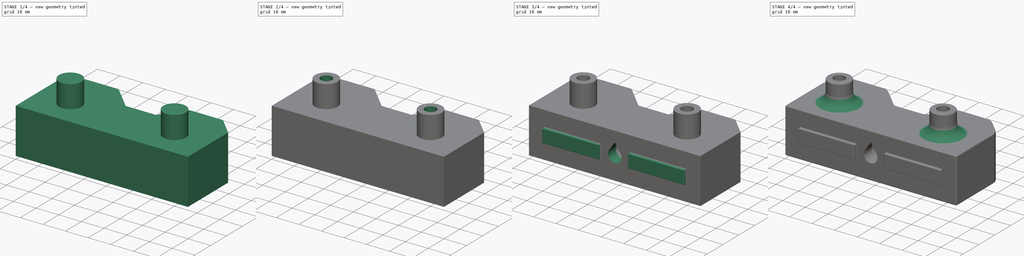
[diagram: build sequence overview — one tinted view per stage of 4, left to right]
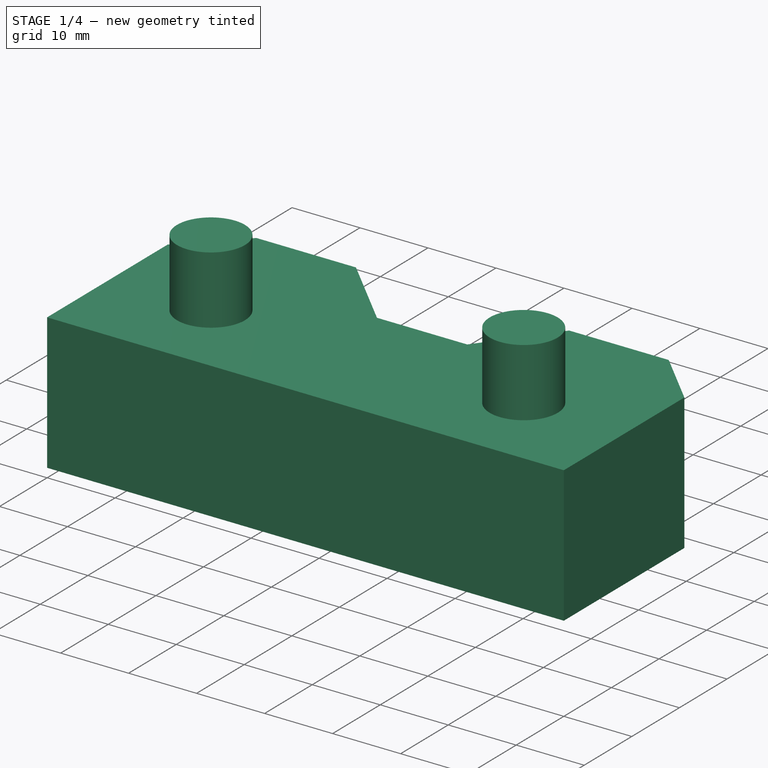
[diagram: stage 1 of 4 — iso view after this stage's code; geometry added in this stage tinted green]
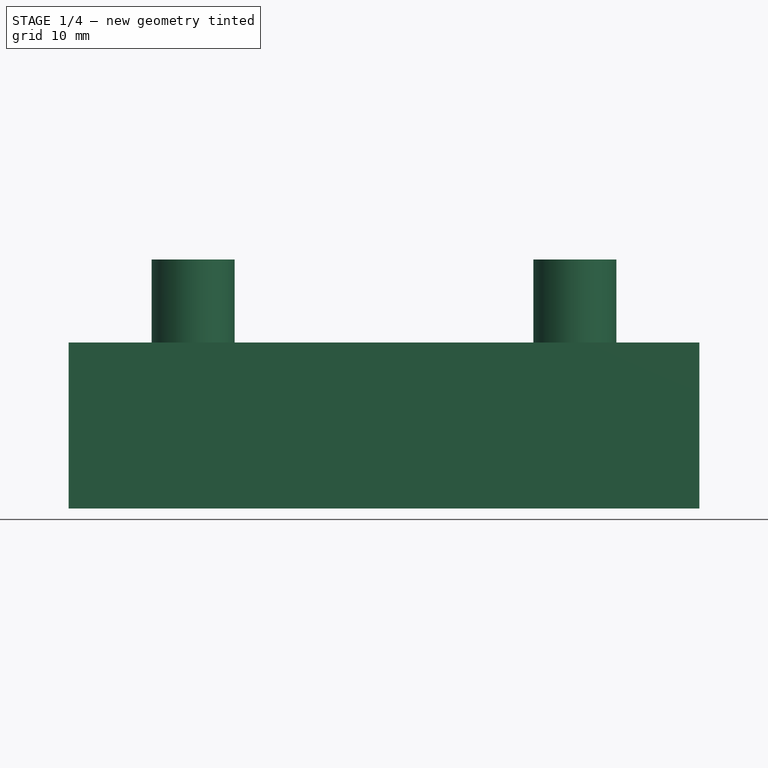
[diagram: stage 1 of 4 — front view after this stage's code; geometry added in this stage tinted green]
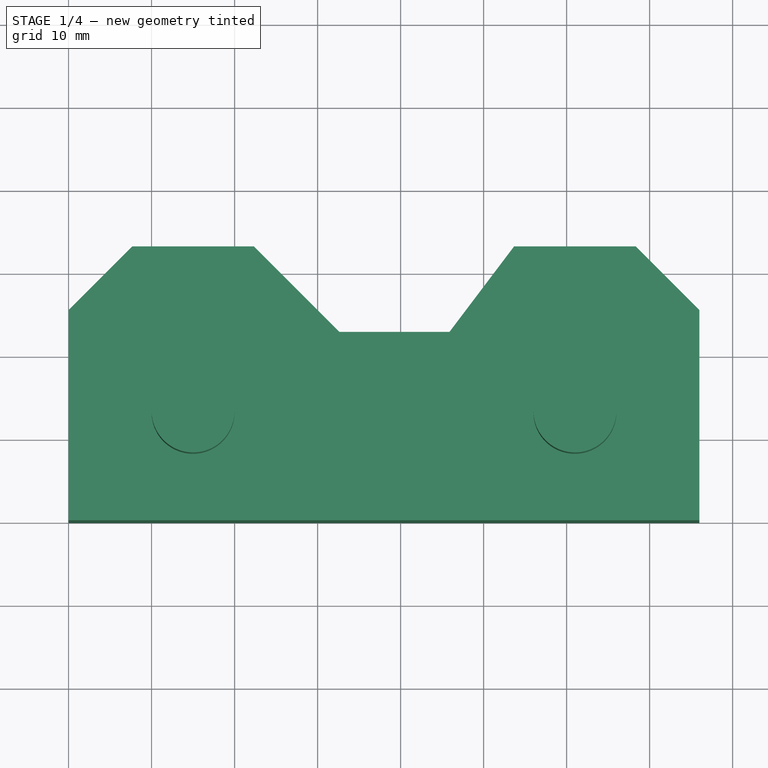
[diagram: stage 1 of 4 — top view after this stage's code; geometry added in this stage tinted green]
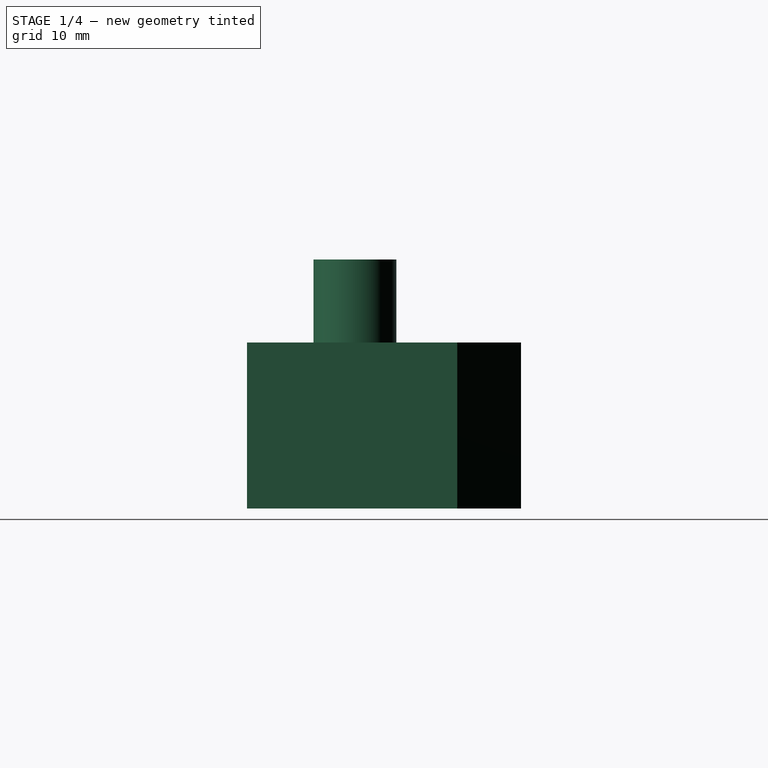
[diagram: stage 1 of 4 — right view after this stage's code; geometry added in this stage tinted green]
FCSTD DOCUMENT  (FreeCAD 1.0R38641 +678 (Git))
Label: voronpc-motherboard-3-miniatx
License: All rights reserved
LicenseURL: https://en.wikipedia.org/wiki/All_rights_reserved
objects: Sketcher::SketchObject×8, PartDesign::Pocket×4, PartDesign::Pad×3, PartDesign::Fillet×3, PartDesign::Body×1
note: 47 computed .brp shape members not serialized (recipe doc carries the construction recipe); baked Part::Feature solids carry a one-line shape summary decoded from their .brp

FEATURE [Sketcher::SketchObject] Sketch
  ArcFitTolerance = 1e-06
  AttachmentSupport = -> [XY_Plane]
  FullyConstrained = false
  MakeInternals = false
  MapMode = 5
  sketch-geometry (16):
    g0: LineSegment StartX=0 StartY=0 StartZ=0 EndX=0 EndY=25.323 EndZ=0
    g1: LineSegment StartX=0 StartY=25.323 StartZ=0 EndX=7.67703 EndY=33 EndZ=0
    g2: LineSegment StartX=7.67703 StartY=33 StartZ=0 EndX=22.323 EndY=33 EndZ=0
    g3: LineSegment StartX=22.323 StartY=33 StartZ=0 EndX=32.6259 EndY=22.6971 EndZ=0
    g4: LineSegment StartX=32.6259 StartY=22.6971 StartZ=0 EndX=45.8918 EndY=22.6971 EndZ=0
    g5: LineSegment StartX=45.8918 StartY=22.6971 StartZ=0 EndX=53.677 EndY=33 EndZ=0
    g6: LineSegment StartX=53.677 StartY=33 StartZ=0 EndX=68.323 EndY=33 EndZ=0
    g7: LineSegment StartX=68.323 StartY=33 StartZ=0 EndX=76 EndY=25.323 EndZ=0
    g8: LineSegment StartX=76 StartY=25.323 StartZ=0 EndX=76 EndY=0 EndZ=0
    g9: LineSegment StartX=76 StartY=0 StartZ=0 EndX=0 EndY=0 EndZ=0
    g10: GeomPoint X=15 Y=13 Z=0
    g11: GeomPoint X=61 Y=13 Z=0
    g12: GeomPoint X=15 Y=33 Z=0
    g13: GeomPoint X=61 Y=33 Z=0
    g14: Circle CenterX=15 CenterY=13 CenterZ=0 NormalX=0 NormalY=0 NormalZ=1 AngleXU=0 Radius=5
    g15: Circle CenterX=61 CenterY=13 CenterZ=0 NormalX=0 NormalY=0 NormalZ=1 AngleXU=0 Radius=5
  constraints (36):
    c: Coincident(g0,g-1)
    c: PointOnObject(g0,g-2)
    c: Coincident(g1,g0)
    c: Coincident(g2,g1)
    c: Coincident(g3,g2)
    c: Horizontal(g4)
    c: Coincident(g7,g6)
    c: PointOnObject(g8,g-1)
    c: Vertical(g8)
    c: Coincident(g9,g8)
    c: Coincident(g9,g0)
    c: Horizontal(g11,g10)
    c: DistanceX(g10,g11) = 46
    c: DistanceY(g0,g10) = 13
    c: DistanceX(g0,g10) = 15
    c: DistanceX(g11,g8) = 15
    c: Coincident(g3,g4)
    c: Coincident(g4,g5)
    c: Coincident(g6,g5)
    c: Horizontal(g1,g2)
    c: Horizontal(g6,g5)
    c: Coincident(g7,g8)
    c: Angle(g1,g2) = 2.35619
    c: Symmetric(g6,g6,g13)
    c: Vertical(g13,g11)
    c: Vertical(g12,g10)
    c: Symmetric(g2,g1,g12)
    c: DistanceY(g10,g12) = 20
    c: Horizontal(g13,g12)
    c: Angle(g6,g7) = 2.35619
    c: Equal(g2,g6)
    c: Angle(g2,g3) = 2.35619
    c: Diameter(g14) = 10
    c: Coincident(g14,g10)
    c: Diameter(g15) = 10
    c: Coincident(g15,g11)
FEATURE [PartDesign::Pad] Pad
  Direction = (0,0,1)
  Length = 20
  Length2 = 10
  Profile = -> Sketch
  ReferenceAxis = -> Sketch [N_Axis]
  Refine = true
  Suppressed = false
  Type = 0
FEATURE [Sketcher::SketchObject] Sketch001
  ArcFitTolerance = 1e-06
  AttachmentSupport = -> [Pad]
  FullyConstrained = true
  MakeInternals = false
  MapMode = 5
  Placement = pos=(0,0,20) rot=(0,0,1;0rad)
FEATURE [Sketcher::SketchObject] Sketch002
  ArcFitTolerance = 1e-06
  AttachmentSupport = -> [Pad]
  ExternalGeometry = -> [Pad]
  FullyConstrained = true
  MakeInternals = false
  MapMode = 5
  Placement = pos=(0,0,0) rot=(1,0,0;3.14159rad)
  sketch-geometry (2):
    g0: Circle CenterX=15 CenterY=-13 CenterZ=0 NormalX=0 NormalY=0 NormalZ=1 AngleXU=0 Radius=5
    g1: Circle CenterX=61 CenterY=-13 CenterZ=0 NormalX=0 NormalY=0 NormalZ=1 AngleXU=0 Radius=5
  constraints (4):
    c: Coincident(g0,g-3)
    c: Equal(g0,g-3)
    c: Coincident(g1,g-4)
    c: Equal(g1,g-4)
FEATURE [PartDesign::Pad] Pad001
  BaseFeature = -> Pad
  Direction = (0,0,-1)
  Length = 30
  Length2 = 10
  Profile = -> Sketch002
  ReferenceAxis = -> Sketch002 [N_Axis]
  Refine = true
  Reversed = true
  Suppressed = false
  Type = 0
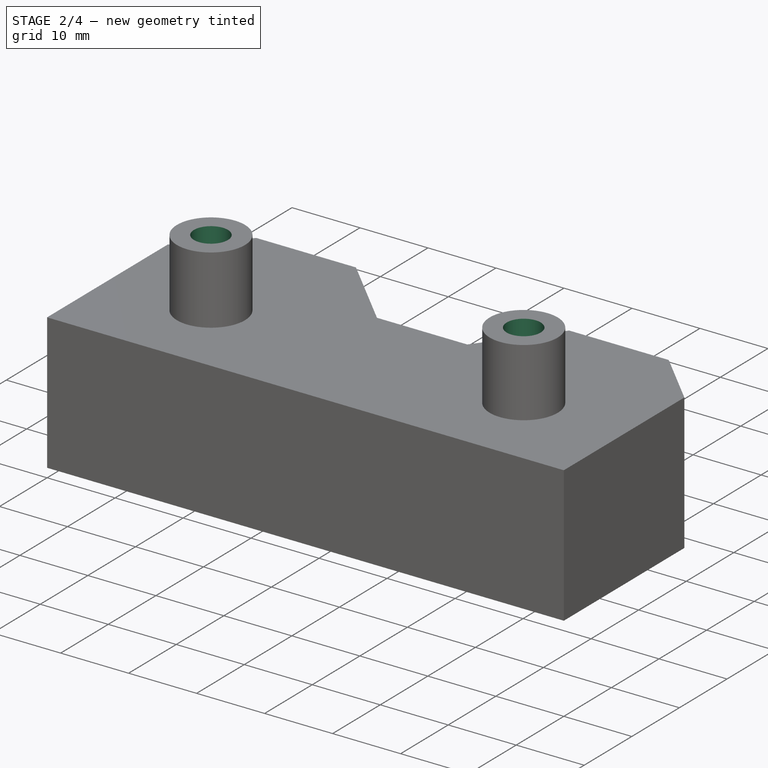
[diagram: stage 2 of 4 — iso view after this stage's code; geometry added in this stage tinted green]
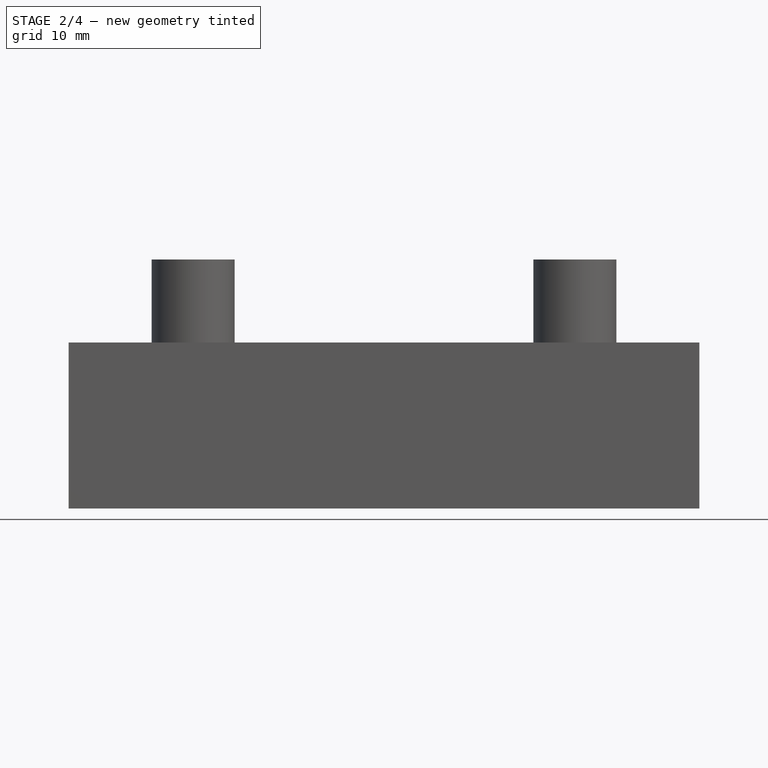
[diagram: stage 2 of 4 — front view after this stage's code; geometry added in this stage tinted green]
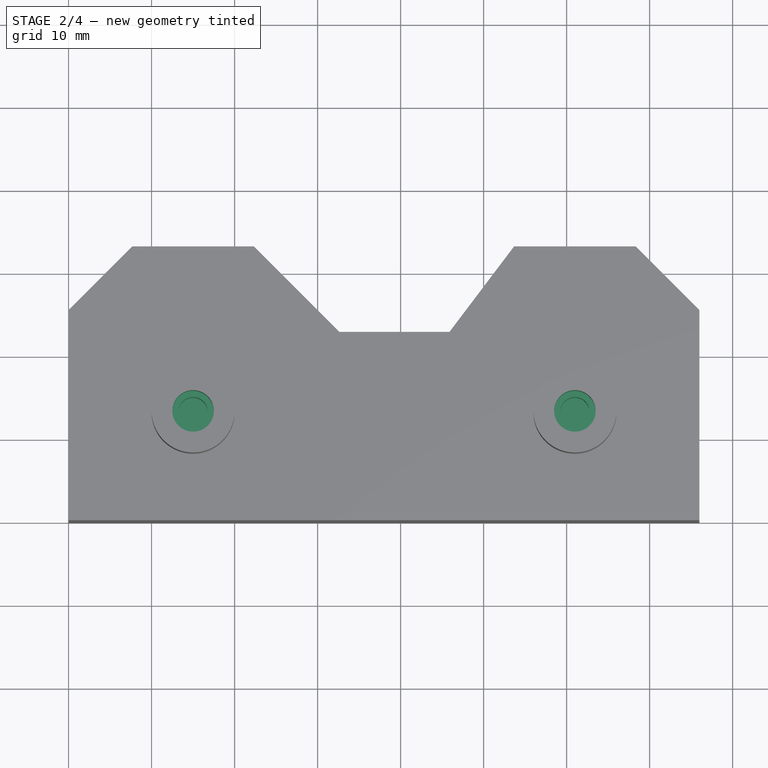
[diagram: stage 2 of 4 — top view after this stage's code; geometry added in this stage tinted green]
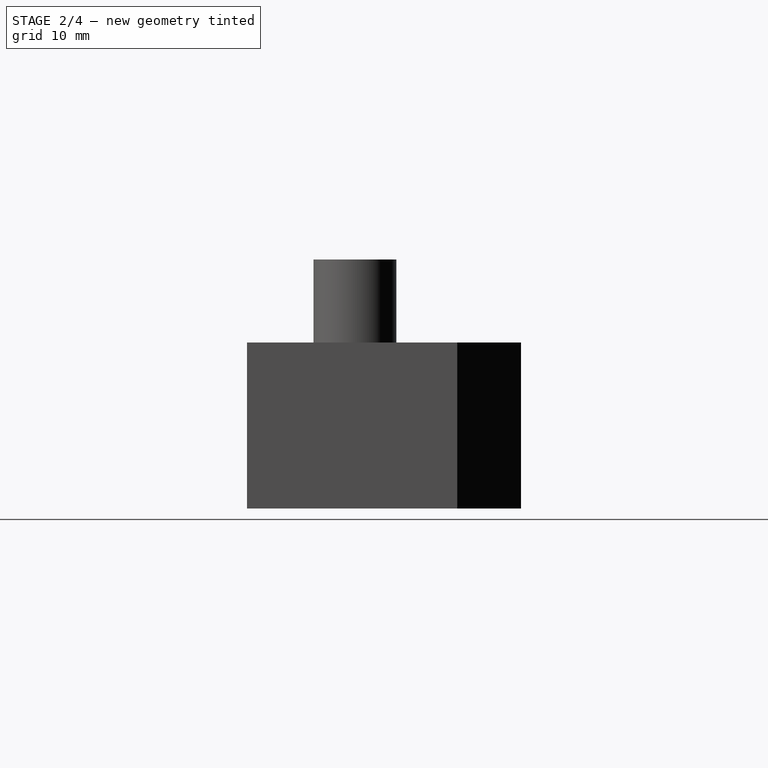
[diagram: stage 2 of 4 — right view after this stage's code; geometry added in this stage tinted green]
FEATURE [Sketcher::SketchObject] Sketch003
  ArcFitTolerance = 1e-06
  AttachmentSupport = -> [Pad001]
  ExternalGeometry = -> [Pad001]
  FullyConstrained = true
  MakeInternals = false
  MapMode = 5
  Placement = pos=(0,0,30) rot=(0,0,1;0rad)
  sketch-geometry (2):
    g0: Circle CenterX=15 CenterY=13 CenterZ=0 NormalX=0 NormalY=0 NormalZ=1 AngleXU=0 Radius=1.75
    g1: Circle CenterX=61 CenterY=13 CenterZ=0 NormalX=0 NormalY=0 NormalZ=1 AngleXU=0 Radius=1.75
  constraints (4):
    c: Diameter(g0) = 3.5
    c: Coincident(g0,g-3)
    c: Diameter(g1) = 3.5
    c: Coincident(g1,g-4)
FEATURE [PartDesign::Pocket] Pocket
  BaseFeature = -> Pad001
  Direction = (0,0,-1)
  Length = 10
  Length2 = 5
  Profile = -> Sketch003
  ReferenceAxis = -> Sketch003 [N_Axis]
  Refine = true
  Suppressed = false
  Type = 0
FEATURE [Sketcher::SketchObject] Sketch004
  ArcFitTolerance = 1e-06
  AttachmentSupport = -> [Pocket]
  ExternalGeometry = -> [Pocket]
  FullyConstrained = true
  MakeInternals = false
  MapMode = 5
  Placement = pos=(0,0,30) rot=(0,0,1;0rad)
  sketch-geometry (2):
    g0: Circle CenterX=15 CenterY=13 CenterZ=0 NormalX=0 NormalY=0 NormalZ=1 AngleXU=0 Radius=2.5
    g1: Circle CenterX=61 CenterY=13 CenterZ=0 NormalX=0 NormalY=0 NormalZ=1 AngleXU=0 Radius=2.5
  constraints (4):
    c: Diameter(g0) = 5
    c: Coincident(g0,g-3)
    c: Diameter(g1) = 5
    c: Coincident(g1,g-4)
FEATURE [PartDesign::Pocket] Pocket001
  BaseFeature = -> Pocket
  Direction = (0,0,-1)
  Length = 5
  Length2 = 5
  Profile = -> Sketch004
  ReferenceAxis = -> Sketch004 [N_Axis]
  Refine = true
  Suppressed = false
  Type = 0
FEATURE [Sketcher::SketchObject] Sketch005
  ArcFitTolerance = 1e-06
  AttachmentSupport = -> [Pocket001]
  ExternalGeometry = -> [Pocket001]
  FullyConstrained = true
  MakeInternals = false
  MapMode = 5
  Placement = pos=(0,0,0) rot=(1,0,0;1.5708rad)
  sketch-geometry (6):
    g0: ArcOfCircle CenterX=38 CenterY=10 CenterZ=0 NormalX=0 NormalY=0 NormalZ=1 AngleXU=0 Radius=4.5 StartAngle=2.52066 EndAngle=6.90412
    g1: LineSegment StartX=41.66 StartY=12.6181 StartZ=0 EndX=38 EndY=18.3987 EndZ=0
    g2: LineSegment StartX=38 StartY=18.3987 StartZ=0 EndX=34.34 EndY=12.6181 EndZ=0
    g3: Circle [constr] CenterX=38 CenterY=14.3497 CenterZ=0 NormalX=0 NormalY=0 NormalZ=1 AngleXU=0 Radius=4.04897
    g4: GeomPoint X=76 Y=10 Z=0
    g5: GeomPoint X=38 Y=0 Z=0
  constraints (15):
    c: Diameter(g0) = 9
    c: Coincident(g1,g2)
    c: Equal(g1,g2)
    c: PointOnObject(g1,g3)
    c: PointOnObject(g2,g3)
    c: PointOnObject(g1,g3)
    c: Coincident(g0,g1)
    c: Coincident(g0,g2)
    c: Symmetric(g-3,g-3,g4)
    c: Distance(g2,g1) = 7.32
    c: Angle(g2,g1) = 1.12888
    c: Symmetric(g-4,g-4,g5)
    c: Vertical(g0,g5)
    c: Horizontal(g0,g4)
    c: Vertical(g1,g0)
FEATURE [PartDesign::Pocket] Pocket002
  BaseFeature = -> Pocket001
  Direction = (0,1,-2e-16)
  Length = 26
  Length2 = -5
  Profile = -> Sketch005
  ReferenceAxis = -> Sketch005 [N_Axis]
  Refine = true
  Suppressed = false
  Type = 4
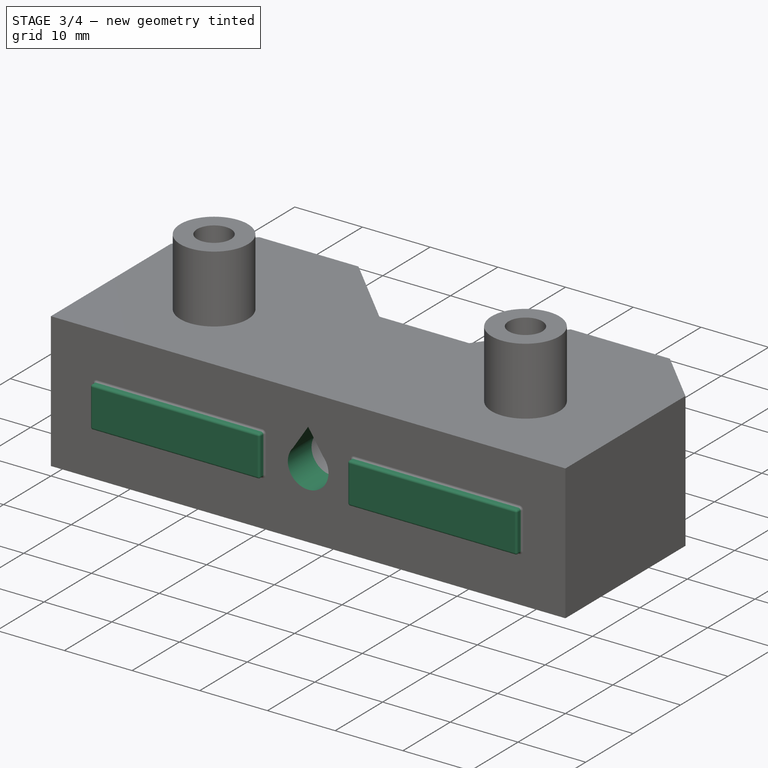
[diagram: stage 3 of 4 — iso view after this stage's code; geometry added in this stage tinted green]
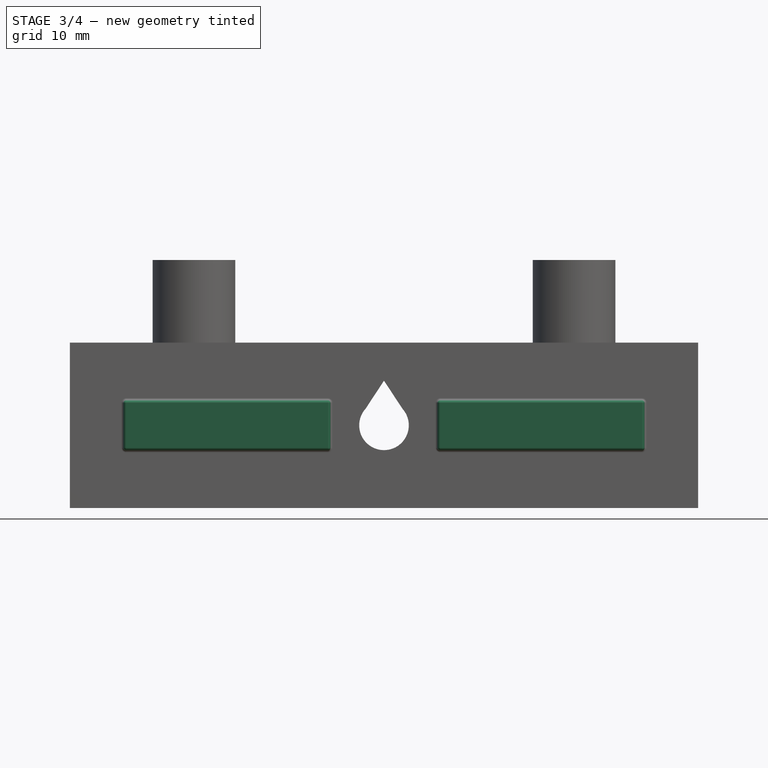
[diagram: stage 3 of 4 — front view after this stage's code; geometry added in this stage tinted green]
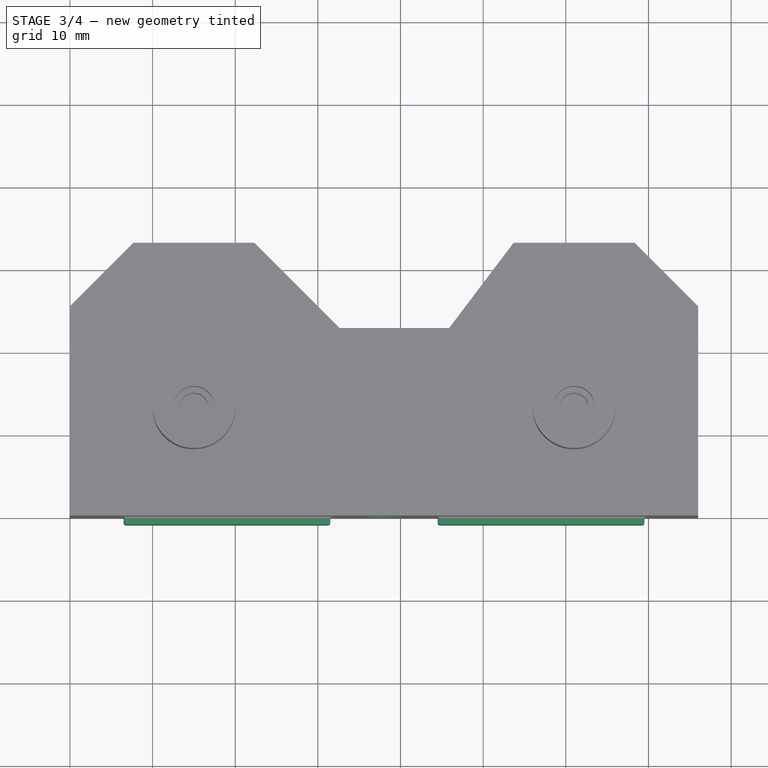
[diagram: stage 3 of 4 — top view after this stage's code; geometry added in this stage tinted green]
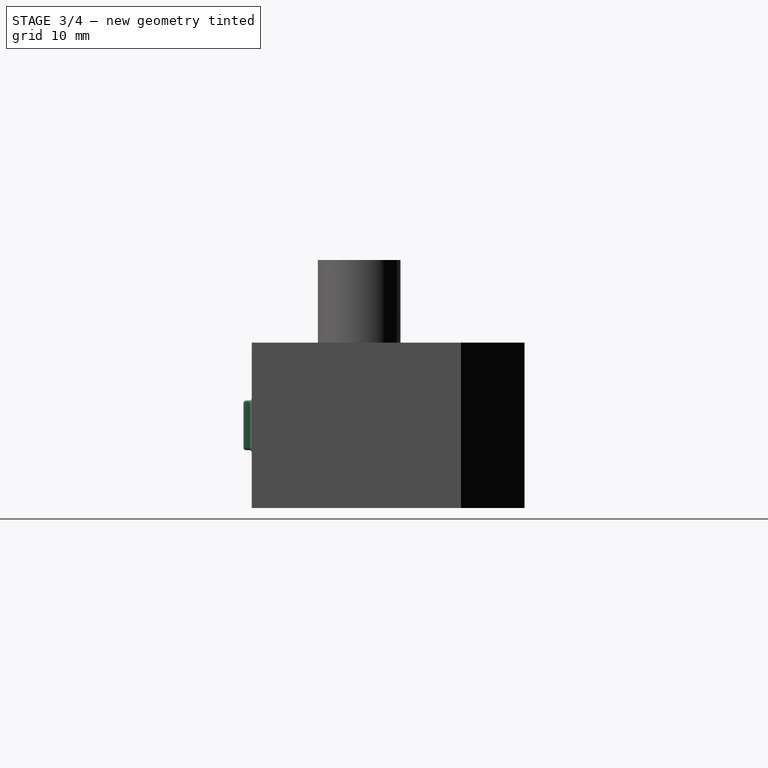
[diagram: stage 3 of 4 — right view after this stage's code; geometry added in this stage tinted green]
FEATURE [Sketcher::SketchObject] Sketch006
  ArcFitTolerance = 1e-06
  AttachmentSupport = -> [Pocket002]
  FullyConstrained = false
  MakeInternals = false
  MapMode = 5
  Placement = pos=(0,0,0) rot=(1,0,0;1.5708rad)
  sketch-geometry (5):
    g0: ArcOfCircle CenterX=38 CenterY=10 CenterZ=0 NormalX=0 NormalY=0 NormalZ=1 AngleXU=0 Radius=3 StartAngle=2.41186 EndAngle=7.01291
    g1: LineSegment StartX=40.2361 StartY=12 StartZ=0 EndX=38 EndY=15.4 EndZ=0
    g2: LineSegment StartX=38 StartY=15.4 StartZ=0 EndX=35.7639 EndY=12 EndZ=0
    g3: Circle [constr] CenterX=38 CenterY=12 CenterZ=0 NormalX=0 NormalY=0 NormalZ=1 AngleXU=0 Radius=3.4
    g4: GeomPoint X=38 Y=10 Z=0
  constraints (11):
    c: Diameter(g0) = 6
    c: Coincident(g1,g2)
    c: PointOnObject(g1,g3)
    c: Vertical(g3,g0)
    c: Coincident(g4,g0)
    c: Coincident(g0,g1)
    c: Coincident(g0,g2)
    c: Vertical(g1,g0)
    c: Symmetric(g0,g0,g3)
    c: DistanceY(g0,g0) = 2
    c: DistanceY(g0,g1) = 5.4
FEATURE [PartDesign::Pocket] Pocket003
  BaseFeature = -> Pocket002
  Direction = (0,1,-2e-16)
  Length = 33
  Length2 = 5
  Profile = -> Sketch006
  ReferenceAxis = -> Sketch006 [N_Axis]
  Refine = true
  Suppressed = false
  Type = 0
FEATURE [Sketcher::SketchObject] Sketch007
  ArcFitTolerance = 1e-06
  AttachmentSupport = -> [Pocket003]
  ExternalGeometry = -> [Pocket003]
  FullyConstrained = true
  MakeInternals = false
  MapMode = 5
  Placement = pos=(0,0,0) rot=(1,0,0;1.5708rad)
  sketch-geometry (14):
    g0: GeomPoint X=38 Y=0 Z=0
    g1: GeomPoint X=76 Y=10 Z=0
    g2: LineSegment StartX=6.5 StartY=13 StartZ=0 EndX=6.5 EndY=7 EndZ=0
    g3: LineSegment StartX=6.5 StartY=7 StartZ=0 EndX=31.5 EndY=7 EndZ=0
    g4: LineSegment StartX=31.5 StartY=7 StartZ=0 EndX=31.5 EndY=13 EndZ=0
    g5: LineSegment StartX=31.5 StartY=13 StartZ=0 EndX=6.5 EndY=13 EndZ=0
    g6: LineSegment StartX=44.5 StartY=13 StartZ=0 EndX=44.5 EndY=7 EndZ=0
    g7: LineSegment StartX=44.5 StartY=7 StartZ=0 EndX=69.5 EndY=7 EndZ=0
    g8: LineSegment StartX=69.5 StartY=7 StartZ=0 EndX=69.5 EndY=13 EndZ=0
    g9: LineSegment StartX=69.5 StartY=13 StartZ=0 EndX=44.5 EndY=13 EndZ=0
    g10: GeomPoint X=57 Y=0 Z=0
    g11: GeomPoint X=19 Y=0 Z=0
    g12: GeomPoint X=57 Y=10 Z=0
    g13: GeomPoint X=19 Y=10 Z=0
  constraints (30):
    c: Symmetric(g-4,g-4,g0)
    c: Symmetric(g-3,g-3,g1)
    c: Coincident(g2,g3)
    c: Coincident(g3,g4)
    c: Coincident(g4,g5)
    c: Coincident(g5,g2)
    c: Vertical(g2)
    c: Vertical(g4)
    c: Horizontal(g3)
    c: Horizontal(g5)
    c: Distance(g2,g4) = 25
    c: Distance(g3,g5) = 6
    c: Coincident(g6,g7)
    c: Coincident(g7,g8)
    c: Coincident(g8,g9)
    c: Coincident(g9,g6)
    c: Vertical(g6)
    c: Vertical(g8)
    c: Horizontal(g7)
    c: Horizontal(g9)
    c: Distance(g6,g8) = 25
    c: Distance(g7,g9) = 6
    c: Symmetric(g-4,g0,g10)
    c: Symmetric(g6,g7,g12)
    c: Symmetric(g3,g2,g13)
    c: Vertical(g13,g11)
    c: Symmetric(g0,g-1,g11)
    c: Horizontal(g13,g1)
    c: Horizontal(g12,g1)
    c: Vertical(g12,g10)
FEATURE [PartDesign::Pad] Pad002
  BaseFeature = -> Pocket003
  Direction = (0,-1,2e-16)
  Length = 1
  Length2 = 10
  Profile = -> Sketch007
  ReferenceAxis = -> Sketch007 [N_Axis]
  Refine = true
  Suppressed = false
  Type = 0
FEATURE [PartDesign::Fillet] Fillet
  Base = -> Pad002 [Edge60,Edge55,Edge57,Edge59,Edge47,Edge52,Edge51,Edge49,Edge15,Edge53,Edge54,Edge16,Edge18,Edge58,Edge17,Edge56,Edge45,Edge14,Edge50,Edge13,Edge48,Edge12,Edge46,Edge11]
  BaseFeature = -> Pad002
  Radius = 0.3
  Refine = true
  SupportTransform = false
  Suppressed = false
  UseAllEdges = false
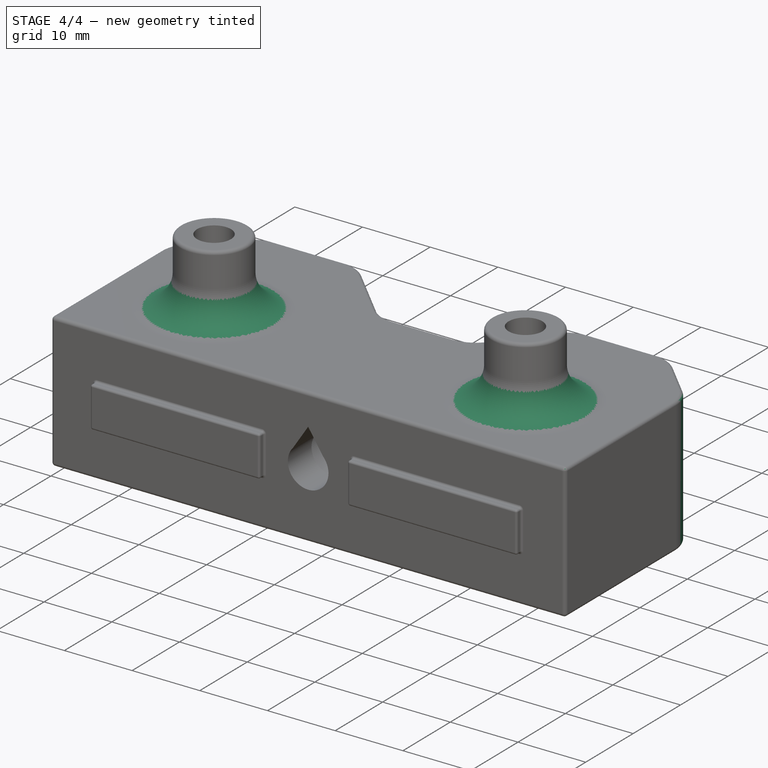
[diagram: stage 4 of 4 — iso view after this stage's code; geometry added in this stage tinted green]
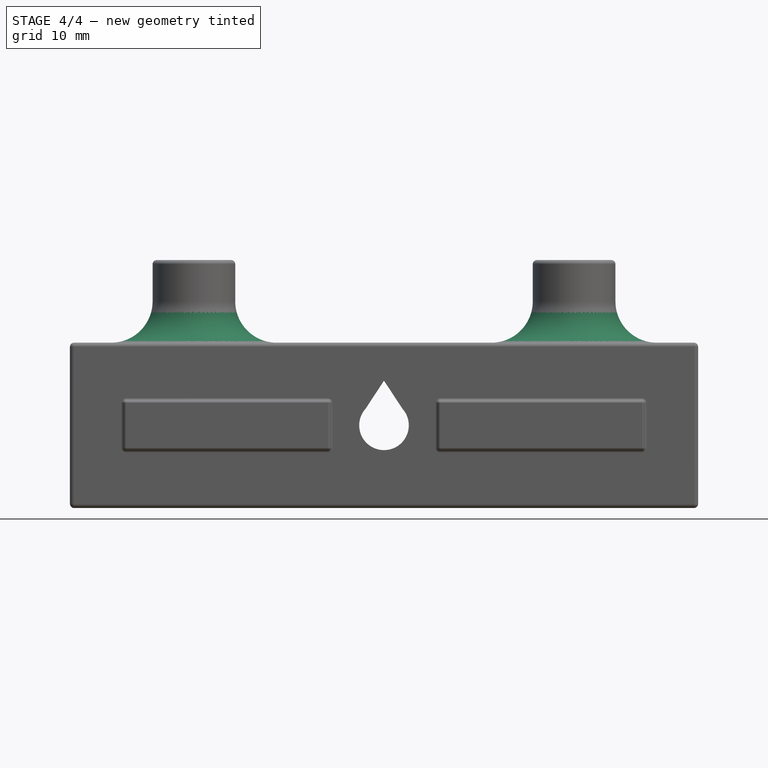
[diagram: stage 4 of 4 — front view after this stage's code; geometry added in this stage tinted green]
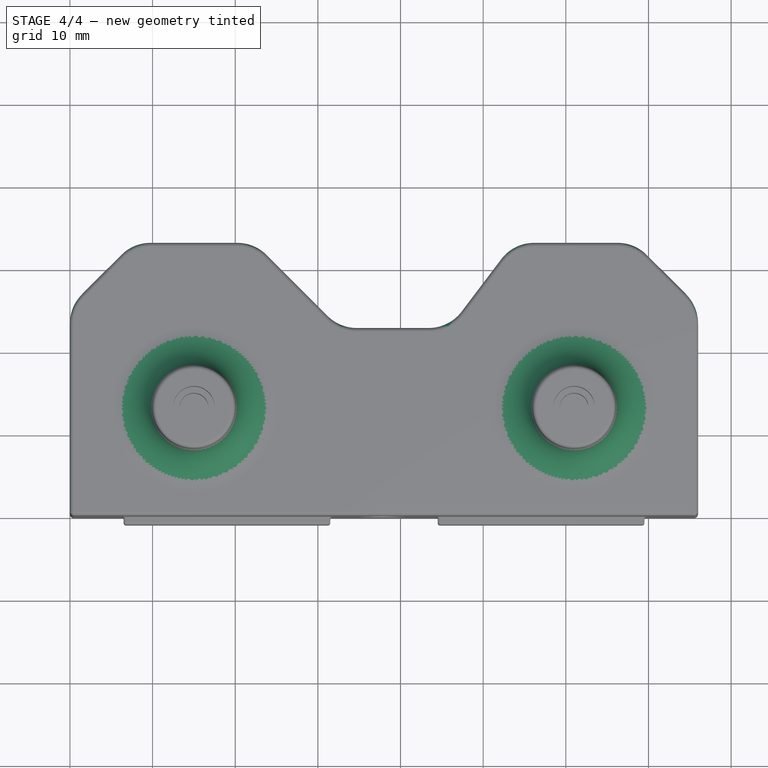
[diagram: stage 4 of 4 — top view after this stage's code; geometry added in this stage tinted green]
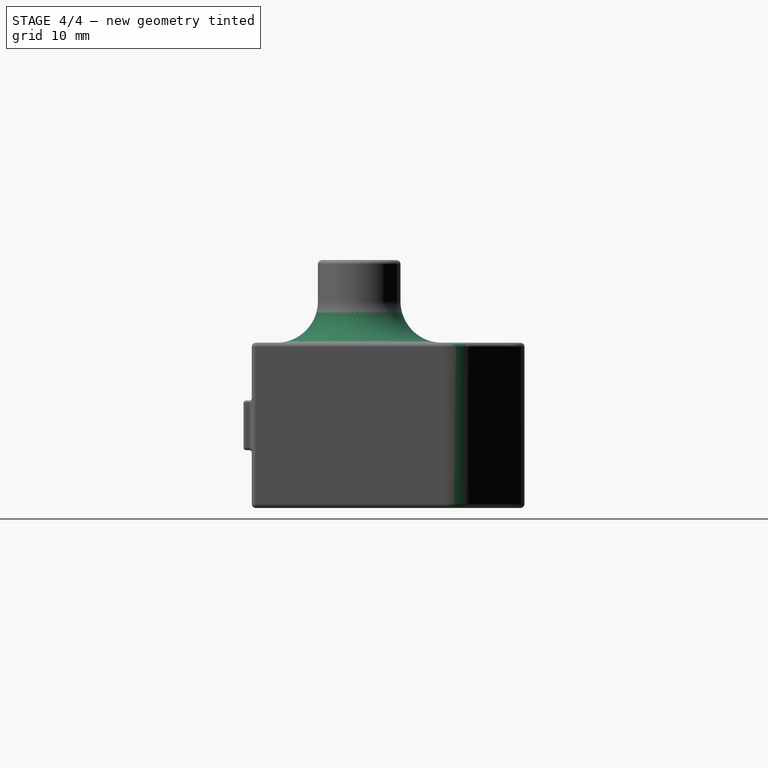
[diagram: stage 4 of 4 — right view after this stage's code; geometry added in this stage tinted green]
FEATURE [PartDesign::Fillet] Fillet001
  Base = -> Fillet [Edge61,Edge60,Edge59,Edge101,Edge102,Edge108,Edge104,Edge100,Edge103,Edge40]
  BaseFeature = -> Fillet
  Radius = 5
  Refine = true
  SupportTransform = false
  Suppressed = false
  UseAllEdges = false
FEATURE [PartDesign::Fillet] Fillet002
  Base = -> Fillet001 [Edge171,Edge169,Edge45,Edge5,Edge32,Edge7,Edge33,Edge3]
  BaseFeature = -> Fillet001
  Radius = 0.5
  Refine = true
  SupportTransform = false
  Suppressed = false
  UseAllEdges = false
FEATURE [PartDesign::Body] Body
  AllowCompound = false
  Group = -> [Sketch,Pad,Sketch001,Sketch002,Pad001,Sketch003,Pocket,Sketch004,Pocket001,Sketch005,Pocket002,Sketch006,Pocket003,Sketch007,Pad002,Fillet,Fillet001,Fillet002]
  Origin = -> Origin
  Tip = -> Fillet002
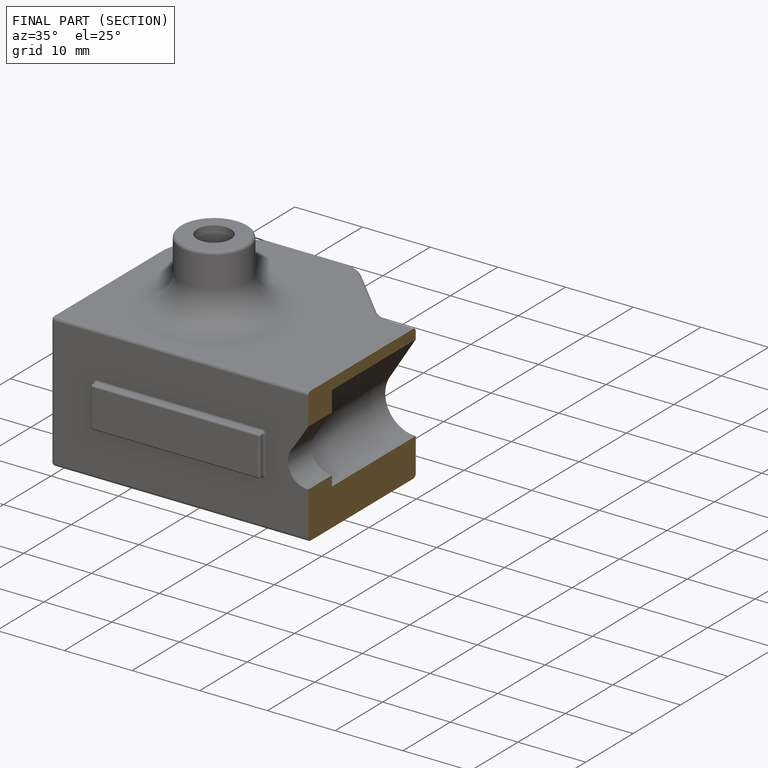
[diagram: finished part — half-section view (interior)]
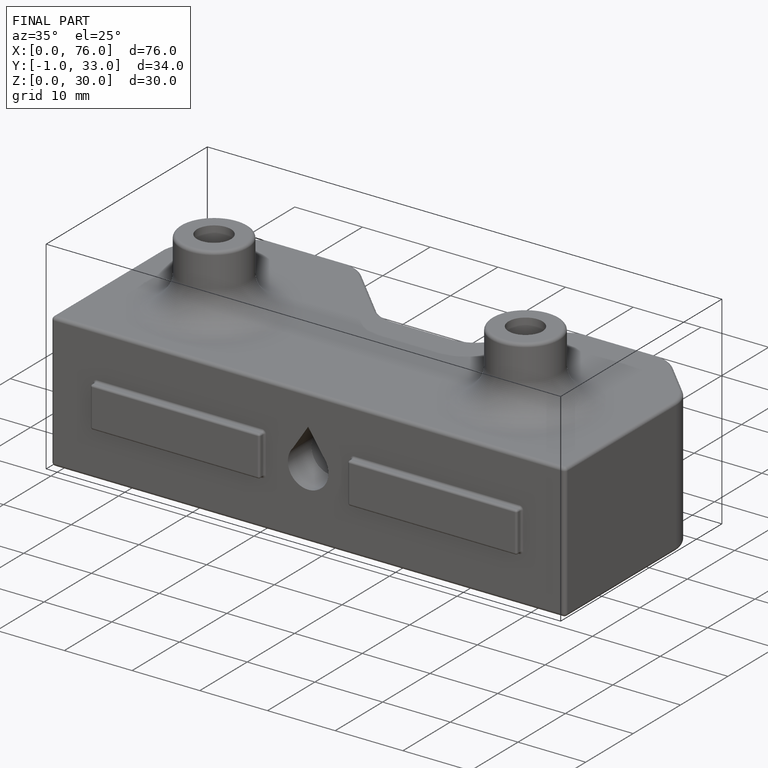
[diagram: finished part — iso view with bounding-box wireframe]
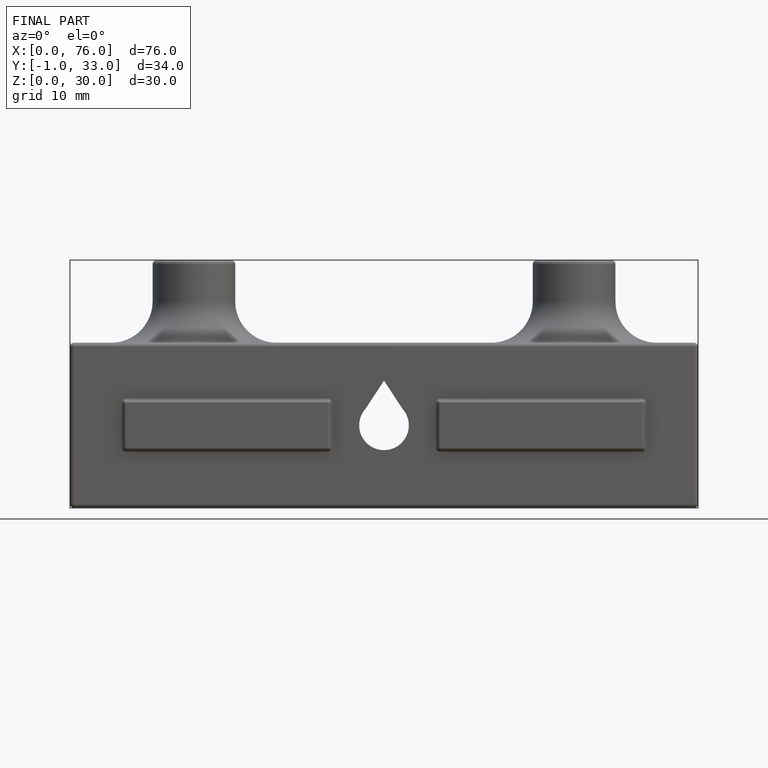
[diagram: finished part — front view with bounding-box wireframe]
